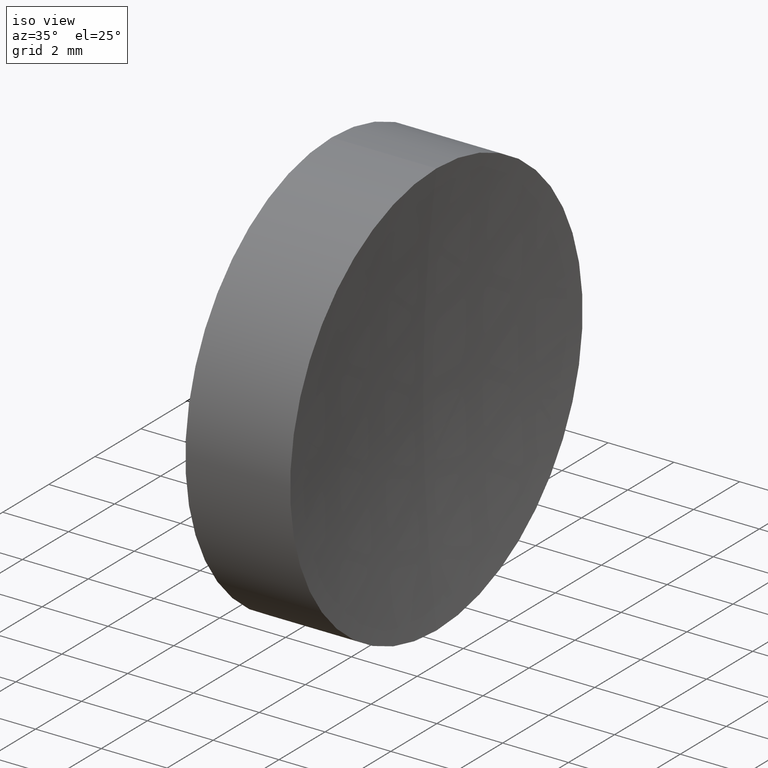
[diagram: clean part render]
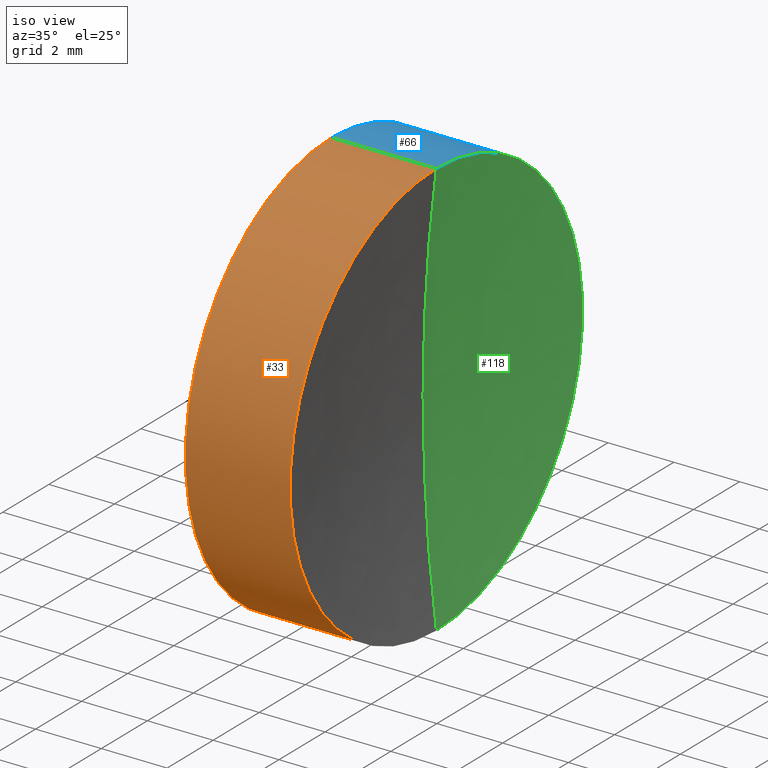
[diagram: same view with three faces highlighted in distinct colors, each labeled with its STEP entity id]
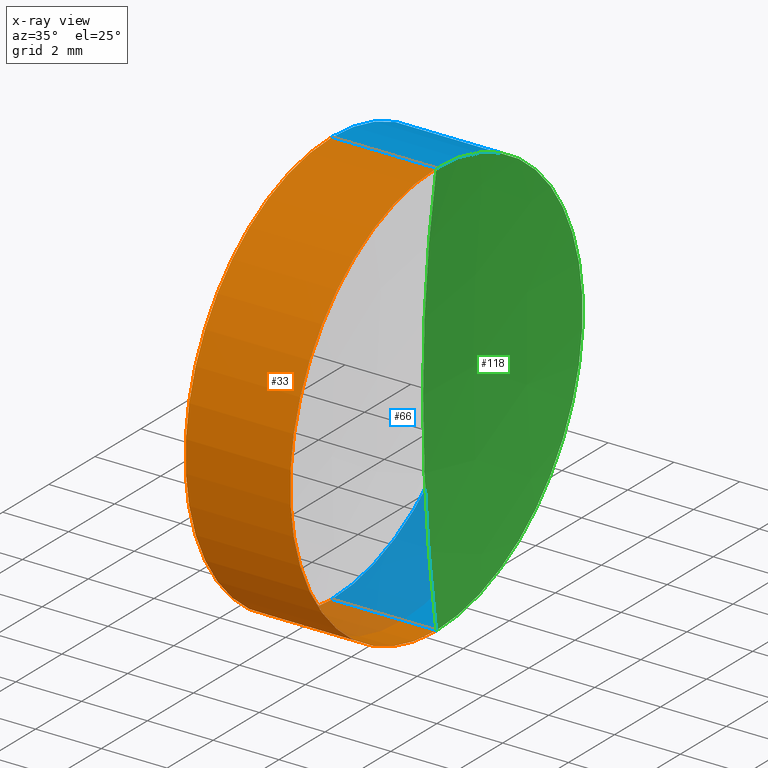
[diagram: x-ray of the same camera — body ghosted, the three highlighted faces saturated]
A machine part, iso view with three faces highlighted in distinct colors.
The next image is the same camera in x-ray (body ghosted, the three faces saturated) — at least one of them is partly hidden behind the body in this view.
Their STEP definitions:

[orange] entity #33 — the highlighted cylindrical surface (partial cylindrical patch) has radius 6.35 mm, axis along (-1, -0, -0).
#6 = DIRECTION ( 'NONE',  ( -1.000000000000000000, -0.0000000000000000000, -0.0000000000000000000 ) ) ;
#22 = EDGE_CURVE ( 'NONE', #86, #112, #131, .T. ) ;
#25 = VERTEX_POINT ( 'NONE', #58 ) ;
#26 = DIRECTION ( 'NONE',  ( 0.0000000000000000000, 0.0000000000000000000, 1.000000000000000000 ) ) ;
#27 = ORIENTED_EDGE ( 'NONE', *, *, #137, .F. ) ;
#33 = ADVANCED_FACE ( 'NONE', ( #54 ), #96, .T. ) ;
#41 = CARTESIAN_POINT ( 'NONE',  ( 0.0000000000000000000, 0.0000000000000000000, 6.350000000000005900 ) ) ;
#42 = DIRECTION ( 'NONE',  ( -1.000000000000000000, -0.0000000000000000000, -0.0000000000000000000 ) ) ;
#43 = LINE ( 'NONE', #41, #132 ) ;
#49 = AXIS2_PLACEMENT_3D ( 'NONE', #138, #42, #57 ) ;
#50 = VERTEX_POINT ( 'NONE', #106 ) ;
#54 = FACE_OUTER_BOUND ( 'NONE', #152, .T. ) ;
#55 = CARTESIAN_POINT ( 'NONE',  ( 0.0000000000000000000, 0.0000000000000000000, 0.0000000000000000000 ) ) ;
#56 = CARTESIAN_POINT ( 'NONE',  ( 3.184864149797912900, 0.0000000000000000000, 0.0000000000000000000 ) ) ;
#57 = DIRECTION ( 'NONE',  ( 0.0000000000000000000, 0.0000000000000000000, 1.000000000000000000 ) ) ;
#58 = CARTESIAN_POINT ( 'NONE',  ( 3.184864149797912900, 0.0000000000000000000, 6.350000000000003200 ) ) ;
#68 = EDGE_CURVE ( 'NONE', #86, #25, #153, .T. ) ;
#74 = EDGE_CURVE ( 'NONE', #25, #50, #43, .T. ) ;
#80 = VECTOR ( 'NONE', #126, 1000.000000000000000 ) ;
#83 = DIRECTION ( 'NONE',  ( 0.0000000000000000000, 0.0000000000000000000, 1.000000000000000000 ) ) ;
#86 = VERTEX_POINT ( 'NONE', #124 ) ;
#96 = CYLINDRICAL_SURFACE ( 'NONE', #110, 6.350000000000005900 ) ;
#102 = CIRCLE ( 'NONE', #49, 6.349999999999999600 ) ;
#106 = CARTESIAN_POINT ( 'NONE',  ( 0.0000000000000000000, 0.0000000000000000000, 6.349999999999999600 ) ) ;
#110 = AXIS2_PLACEMENT_3D ( 'NONE', #55, #134, #83 ) ;
#112 = VERTEX_POINT ( 'NONE', #144 ) ;
#117 = ORIENTED_EDGE ( 'NONE', *, *, #22, .F. ) ;
#123 = DIRECTION ( 'NONE',  ( -1.000000000000000000, -0.0000000000000000000, -0.0000000000000000000 ) ) ;
#124 = CARTESIAN_POINT ( 'NONE',  ( 3.184864149797912900, 7.776507174585696100E-016, -6.350000000000003200 ) ) ;
#126 = DIRECTION ( 'NONE',  ( -1.000000000000000000, -0.0000000000000000000, -0.0000000000000000000 ) ) ;
#131 = LINE ( 'NONE', #161, #80 ) ;
#132 = VECTOR ( 'NONE', #6, 1000.000000000000000 ) ;
#134 = DIRECTION ( 'NONE',  ( -1.000000000000000000, -0.0000000000000000000, -0.0000000000000000000 ) ) ;
#137 = EDGE_CURVE ( 'NONE', #112, #50, #102, .T. ) ;
#138 = CARTESIAN_POINT ( 'NONE',  ( 0.0000000000000000000, 0.0000000000000000000, 0.0000000000000000000 ) ) ;
#144 = CARTESIAN_POINT ( 'NONE',  ( 0.0000000000000000000, 7.776507174585696100E-016, -6.349999999999999600 ) ) ;
#152 = EDGE_LOOP ( 'NONE', ( #117, #164, #154, #27 ) ) ;
#153 = CIRCLE ( 'NONE', #156, 6.350000000000012100 ) ;
#154 = ORIENTED_EDGE ( 'NONE', *, *, #74, .T. ) ;
#156 = AXIS2_PLACEMENT_3D ( 'NONE', #56, #123, #26 ) ;
#161 = CARTESIAN_POINT ( 'NONE',  ( 0.0000000000000000000, 7.776507174585700100E-016, -6.350000000000005900 ) ) ;
#164 = ORIENTED_EDGE ( 'NONE', *, *, #68, .T. ) ;

[blue] entity #66 — the highlighted cylindrical surface (partial cylindrical patch) has radius 6.35 mm, axis along (-1, -0, -0).
#5 = DIRECTION ( 'NONE',  ( -1.000000000000000000, -0.0000000000000000000, -0.0000000000000000000 ) ) ;
#6 = DIRECTION ( 'NONE',  ( -1.000000000000000000, -0.0000000000000000000, -0.0000000000000000000 ) ) ;
#8 = CIRCLE ( 'NONE', #147, 6.349999999999999600 ) ;
#15 = EDGE_LOOP ( 'NONE', ( #143, #77, #122, #48 ) ) ;
#16 = DIRECTION ( 'NONE',  ( -1.000000000000000000, -0.0000000000000000000, -0.0000000000000000000 ) ) ;
#22 = EDGE_CURVE ( 'NONE', #86, #112, #131, .T. ) ;
#25 = VERTEX_POINT ( 'NONE', #58 ) ;
#38 = CARTESIAN_POINT ( 'NONE',  ( 0.0000000000000000000, 0.0000000000000000000, 0.0000000000000000000 ) ) ;
#39 = DIRECTION ( 'NONE',  ( 0.0000000000000000000, 0.0000000000000000000, 1.000000000000000000 ) ) ;
#41 = CARTESIAN_POINT ( 'NONE',  ( 0.0000000000000000000, 0.0000000000000000000, 6.350000000000005900 ) ) ;
#43 = LINE ( 'NONE', #41, #132 ) ;
#45 = CIRCLE ( 'NONE', #75, 6.350000000000012100 ) ;
#48 = ORIENTED_EDGE ( 'NONE', *, *, #74, .F. ) ;
#50 = VERTEX_POINT ( 'NONE', #106 ) ;
#53 = EDGE_CURVE ( 'NONE', #25, #86, #45, .T. ) ;
#58 = CARTESIAN_POINT ( 'NONE',  ( 3.184864149797912900, 0.0000000000000000000, 6.350000000000003200 ) ) ;
#62 = FACE_OUTER_BOUND ( 'NONE', #15, .T. ) ;
#66 = ADVANCED_FACE ( 'NONE', ( #62 ), #94, .T. ) ;
#74 = EDGE_CURVE ( 'NONE', #25, #50, #43, .T. ) ;
#75 = AXIS2_PLACEMENT_3D ( 'NONE', #145, #16, #109 ) ;
#77 = ORIENTED_EDGE ( 'NONE', *, *, #22, .T. ) ;
#79 = DIRECTION ( 'NONE',  ( 0.0000000000000000000, 0.0000000000000000000, 1.000000000000000000 ) ) ;
#80 = VECTOR ( 'NONE', #126, 1000.000000000000000 ) ;
#86 = VERTEX_POINT ( 'NONE', #124 ) ;
#92 = CARTESIAN_POINT ( 'NONE',  ( 0.0000000000000000000, 0.0000000000000000000, 0.0000000000000000000 ) ) ;
#94 = CYLINDRICAL_SURFACE ( 'NONE', #125, 6.350000000000005900 ) ;
#106 = CARTESIAN_POINT ( 'NONE',  ( 0.0000000000000000000, 0.0000000000000000000, 6.349999999999999600 ) ) ;
#107 = DIRECTION ( 'NONE',  ( -1.000000000000000000, -0.0000000000000000000, -0.0000000000000000000 ) ) ;
#109 = DIRECTION ( 'NONE',  ( 0.0000000000000000000, 0.0000000000000000000, 1.000000000000000000 ) ) ;
#112 = VERTEX_POINT ( 'NONE', #144 ) ;
#121 = EDGE_CURVE ( 'NONE', #50, #112, #8, .T. ) ;
#122 = ORIENTED_EDGE ( 'NONE', *, *, #121, .F. ) ;
#124 = CARTESIAN_POINT ( 'NONE',  ( 3.184864149797912900, 7.776507174585696100E-016, -6.350000000000003200 ) ) ;
#125 = AXIS2_PLACEMENT_3D ( 'NONE', #38, #107, #39 ) ;
#126 = DIRECTION ( 'NONE',  ( -1.000000000000000000, -0.0000000000000000000, -0.0000000000000000000 ) ) ;
#131 = LINE ( 'NONE', #161, #80 ) ;
#132 = VECTOR ( 'NONE', #6, 1000.000000000000000 ) ;
#143 = ORIENTED_EDGE ( 'NONE', *, *, #53, .T. ) ;
#144 = CARTESIAN_POINT ( 'NONE',  ( 0.0000000000000000000, 7.776507174585696100E-016, -6.349999999999999600 ) ) ;
#145 = CARTESIAN_POINT ( 'NONE',  ( 3.184864149797912900, 0.0000000000000000000, 0.0000000000000000000 ) ) ;
#147 = AXIS2_PLACEMENT_3D ( 'NONE', #92, #5, #79 ) ;
#161 = CARTESIAN_POINT ( 'NONE',  ( 0.0000000000000000000, 7.776507174585700100E-016, -6.350000000000005900 ) ) ;

[green] entity #118 — the highlighted spherical surface has radius 50 mm.
#4 = CIRCLE ( 'NONE', #103, 50.00000000000000000 ) ;
#12 = FACE_OUTER_BOUND ( 'NONE', #17, .T. ) ;
#16 = DIRECTION ( 'NONE',  ( -1.000000000000000000, -0.0000000000000000000, -0.0000000000000000000 ) ) ;
#17 = EDGE_LOOP ( 'NONE', ( #158, #44, #166 ) ) ;
#19 = CARTESIAN_POINT ( 'NONE',  ( 52.78000000000000100, 0.0000000000000000000, 0.0000000000000000000 ) ) ;
#25 = VERTEX_POINT ( 'NONE', #58 ) ;
#29 = DIRECTION ( 'NONE',  ( 0.0000000000000000000, 0.0000000000000000000, -1.000000000000000000 ) ) ;
#34 = EDGE_CURVE ( 'NONE', #86, #104, #4, .T. ) ;
#44 = ORIENTED_EDGE ( 'NONE', *, *, #53, .F. ) ;
#45 = CIRCLE ( 'NONE', #75, 6.350000000000012100 ) ;
#51 = AXIS2_PLACEMENT_3D ( 'NONE', #19, #113, #29 ) ;
#53 = EDGE_CURVE ( 'NONE', #25, #86, #45, .T. ) ;
#58 = CARTESIAN_POINT ( 'NONE',  ( 3.184864149797912900, 0.0000000000000000000, 6.350000000000003200 ) ) ;
#70 = DIRECTION ( 'NONE',  ( 0.0000000000000000000, -1.224646799147353200E-016, 1.000000000000000000 ) ) ;
#75 = AXIS2_PLACEMENT_3D ( 'NONE', #145, #16, #109 ) ;
#86 = VERTEX_POINT ( 'NONE', #124 ) ;
#90 = CIRCLE ( 'NONE', #51, 50.00000000000000000 ) ;
#91 = DIRECTION ( 'NONE',  ( 0.0000000000000000000, 0.0000000000000000000, 1.000000000000000000 ) ) ;
#103 = AXIS2_PLACEMENT_3D ( 'NONE', #135, #146, #70 ) ;
#104 = VERTEX_POINT ( 'NONE', #108 ) ;
#108 = CARTESIAN_POINT ( 'NONE',  ( 2.779999999999997600, 0.0000000000000000000, 3.061616997868383000E-015 ) ) ;
#109 = DIRECTION ( 'NONE',  ( 0.0000000000000000000, 0.0000000000000000000, 1.000000000000000000 ) ) ;
#113 = DIRECTION ( 'NONE',  ( 0.0000000000000000000, -1.000000000000000000, 0.0000000000000000000 ) ) ;
#115 = AXIS2_PLACEMENT_3D ( 'NONE', #136, #157, #91 ) ;
#118 = ADVANCED_FACE ( 'NONE', ( #12 ), #165, .F. ) ;
#124 = CARTESIAN_POINT ( 'NONE',  ( 3.184864149797912900, 7.776507174585696100E-016, -6.350000000000003200 ) ) ;
#135 = CARTESIAN_POINT ( 'NONE',  ( 52.78000000000000100, 0.0000000000000000000, 0.0000000000000000000 ) ) ;
#136 = CARTESIAN_POINT ( 'NONE',  ( 52.78000000000000100, 0.0000000000000000000, 0.0000000000000000000 ) ) ;
#142 = EDGE_CURVE ( 'NONE', #25, #104, #90, .T. ) ;
#145 = CARTESIAN_POINT ( 'NONE',  ( 3.184864149797912900, 0.0000000000000000000, 0.0000000000000000000 ) ) ;
#146 = DIRECTION ( 'NONE',  ( -0.0000000000000000000, 1.000000000000000000, 1.224646799147353200E-016 ) ) ;
#157 = DIRECTION ( 'NONE',  ( 0.0000000000000000000, 1.000000000000000000, 0.0000000000000000000 ) ) ;
#158 = ORIENTED_EDGE ( 'NONE', *, *, #34, .F. ) ;
#165 = SPHERICAL_SURFACE ( 'NONE', #115, 50.00000000000000000 ) ;
#166 = ORIENTED_EDGE ( 'NONE', *, *, #142, .T. ) ;